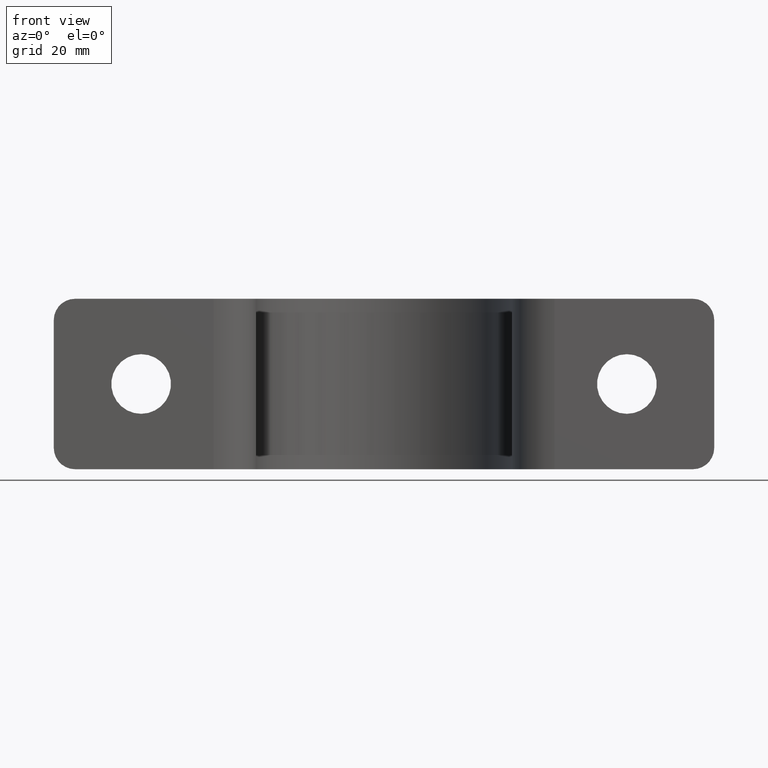
[diagram: clean part render]
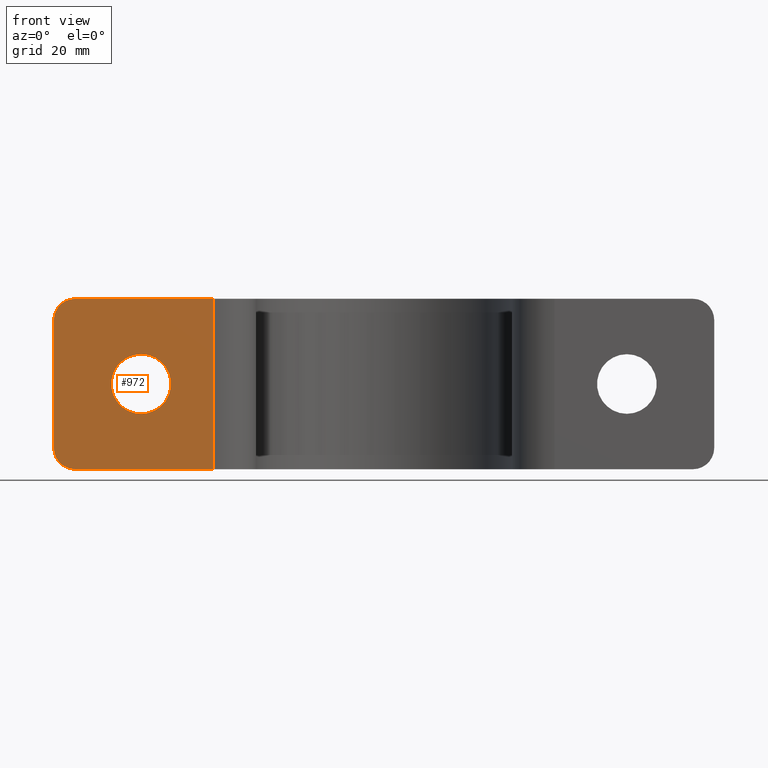
[diagram: same view with one face highlighted and labeled with its STEP entity id]
A machine part, front view. The second image highlights one B-rep face of the part: STEP entity #972.
In plain terms, the highlighted planar face has unit normal (-0, 1, 0).
Its self-contained STEP definition (entity closure, byte-faithful):
#9 = CARTESIAN_POINT ( 'NONE',  ( -72.49999999999998579, 2.999999999999975131, -20.00000000000000000 ) ) ;
#10 = AXIS2_PLACEMENT_3D ( 'NONE', #1037, #374, #870 ) ;
#17 = CARTESIAN_POINT ( 'NONE',  ( -57.00000000000000000, 2.999999999999973355, 0.000000000000000000 ) ) ;
#52 = EDGE_LOOP ( 'NONE', ( #343, #655 ) ) ;
#53 = CIRCLE ( 'NONE', #947, 5.000000000000004441 ) ;
#57 = EDGE_CURVE ( 'NONE', #1081, #366, #897, .T. ) ;
#69 = CARTESIAN_POINT ( 'NONE',  ( -40.00000000000000000, 2.999999999999980016, -20.00000000000000000 ) ) ;
#74 = DIRECTION ( 'NONE',  ( -1.000000000000000000, -1.734723475976805615E-16, 0.000000000000000000 ) ) ;
#81 = EDGE_CURVE ( 'NONE', #731, #133, #1087, .T. ) ;
#87 = CARTESIAN_POINT ( 'NONE',  ( -72.50000000000000000, 2.999999999999975131, 20.00000000000000000 ) ) ;
#100 = ORIENTED_EDGE ( 'NONE', *, *, #726, .T. ) ;
#102 = PLANE ( 'NONE',  #208 ) ;
#126 = ORIENTED_EDGE ( 'NONE', *, *, #512, .F. ) ;
#133 = VERTEX_POINT ( 'NONE', #69 ) ;
#143 = DIRECTION ( 'NONE',  ( -0.000000000000000000, 1.000000000000000000, -0.000000000000000000 ) ) ;
#147 = DIRECTION ( 'NONE',  ( -1.460819769243627131E-16, 1.000000000000000000, 0.000000000000000000 ) ) ;
#151 = CARTESIAN_POINT ( 'NONE',  ( -72.50000000000000000, 2.999999999999975131, 15.00000000000000000 ) ) ;
#176 = CARTESIAN_POINT ( 'NONE',  ( -77.50000000000000000, 2.999999999999974687, 15.00000000000000000 ) ) ;
#184 = FACE_OUTER_BOUND ( 'NONE', #1021, .T. ) ;
#208 = AXIS2_PLACEMENT_3D ( 'NONE', #443, #147, #565 ) ;
#220 = ORIENTED_EDGE ( 'NONE', *, *, #81, .F. ) ;
#228 = DIRECTION ( 'NONE',  ( 0.000000000000000000, 0.000000000000000000, 1.000000000000000000 ) ) ;
#261 = CARTESIAN_POINT ( 'NONE',  ( -77.50000000000000000, 2.999999999999974687, 20.00000000000000000 ) ) ;
#262 = CARTESIAN_POINT ( 'NONE',  ( -77.50000000000000000, 2.999999999999974687, 20.00000000000000000 ) ) ;
#269 = FACE_BOUND ( 'NONE', #52, .T. ) ;
#289 = CARTESIAN_POINT ( 'NONE',  ( -77.50000000000000000, 2.999999999999974687, -15.00000000000000355 ) ) ;
#318 = VECTOR ( 'NONE', #965, 1000.000000000000000 ) ;
#326 = CARTESIAN_POINT ( 'NONE',  ( -57.00000000000000000, 2.999999999999973355, 6.999999999999999112 ) ) ;
#343 = ORIENTED_EDGE ( 'NONE', *, *, #57, .T. ) ;
#353 = DIRECTION ( 'NONE',  ( -0.000000000000000000, 1.000000000000000000, -0.000000000000000000 ) ) ;
#366 = VERTEX_POINT ( 'NONE', #549 ) ;
#374 = DIRECTION ( 'NONE',  ( 1.460819769243627131E-16, -1.000000000000000000, -0.000000000000000000 ) ) ;
#443 = CARTESIAN_POINT ( 'NONE',  ( -77.50000000000000000, 2.999999999999974687, 20.00000000000000000 ) ) ;
#462 = CARTESIAN_POINT ( 'NONE',  ( -40.00000000000000000, 2.999999999999980016, 20.00000000000000000 ) ) ;
#465 = EDGE_CURVE ( 'NONE', #528, #133, #521, .T. ) ;
#477 = CIRCLE ( 'NONE', #718, 6.999999999999999112 ) ;
#482 = DIRECTION ( 'NONE',  ( -0.000000000000000000, -0.000000000000000000, -1.000000000000000000 ) ) ;
#488 = CIRCLE ( 'NONE', #10, 5.000000000000004441 ) ;
#512 = EDGE_CURVE ( 'NONE', #519, #731, #703, .T. ) ;
#519 = VERTEX_POINT ( 'NONE', #87 ) ;
#521 = LINE ( 'NONE', #999, #809 ) ;
#528 = VERTEX_POINT ( 'NONE', #9 ) ;
#549 = CARTESIAN_POINT ( 'NONE',  ( -57.00000000000000000, 2.999999999999973355, -6.999999999999999112 ) ) ;
#554 = VECTOR ( 'NONE', #482, 1000.000000000000000 ) ;
#565 = DIRECTION ( 'NONE',  ( -1.000000000000000000, -1.460819769243627131E-16, 0.000000000000000000 ) ) ;
#567 = AXIS2_PLACEMENT_3D ( 'NONE', #924, #143, #228 ) ;
#568 = VECTOR ( 'NONE', #712, 1000.000000000000000 ) ;
#593 = LINE ( 'NONE', #262, #568 ) ;
#620 = VERTEX_POINT ( 'NONE', #289 ) ;
#655 = ORIENTED_EDGE ( 'NONE', *, *, #956, .T. ) ;
#703 = LINE ( 'NONE', #261, #318 ) ;
#704 = DIRECTION ( 'NONE',  ( 0.000000000000000000, 0.000000000000000000, 1.000000000000000000 ) ) ;
#712 = DIRECTION ( 'NONE',  ( -0.000000000000000000, -0.000000000000000000, -1.000000000000000000 ) ) ;
#718 = AXIS2_PLACEMENT_3D ( 'NONE', #17, #353, #704 ) ;
#726 = EDGE_CURVE ( 'NONE', #620, #528, #488, .T. ) ;
#731 = VERTEX_POINT ( 'NONE', #462 ) ;
#746 = ORIENTED_EDGE ( 'NONE', *, *, #1013, .T. ) ;
#790 = DIRECTION ( 'NONE',  ( 1.000000000000000000, 1.460819769243627131E-16, 0.000000000000000000 ) ) ;
#809 = VECTOR ( 'NONE', #790, 1000.000000000000000 ) ;
#824 = ORIENTED_EDGE ( 'NONE', *, *, #465, .T. ) ;
#870 = DIRECTION ( 'NONE',  ( -1.000000000000000000, -1.734723475976805615E-16, -1.040834085586083271E-15 ) ) ;
#897 = CIRCLE ( 'NONE', #567, 6.999999999999999112 ) ;
#903 = VERTEX_POINT ( 'NONE', #176 ) ;
#924 = CARTESIAN_POINT ( 'NONE',  ( -57.00000000000000000, 2.999999999999973355, 0.000000000000000000 ) ) ;
#946 = EDGE_CURVE ( 'NONE', #903, #620, #593, .T. ) ;
#947 = AXIS2_PLACEMENT_3D ( 'NONE', #151, #1104, #74 ) ;
#956 = EDGE_CURVE ( 'NONE', #366, #1081, #477, .T. ) ;
#965 = DIRECTION ( 'NONE',  ( 1.000000000000000000, 1.460819769243627131E-16, 0.000000000000000000 ) ) ;
#972 = ADVANCED_FACE ( 'NONE', ( #269, #184 ), #102, .F. ) ;
#999 = CARTESIAN_POINT ( 'NONE',  ( -77.50000000000000000, 2.999999999999974687, -20.00000000000000000 ) ) ;
#1013 = EDGE_CURVE ( 'NONE', #519, #903, #53, .T. ) ;
#1018 = CARTESIAN_POINT ( 'NONE',  ( -40.00000000000000000, 2.999999999999980016, 20.00000000000000000 ) ) ;
#1021 = EDGE_LOOP ( 'NONE', ( #1064, #100, #824, #220, #126, #746 ) ) ;
#1037 = CARTESIAN_POINT ( 'NONE',  ( -72.49999999999998579, 2.999999999999975131, -15.00000000000000000 ) ) ;
#1064 = ORIENTED_EDGE ( 'NONE', *, *, #946, .T. ) ;
#1081 = VERTEX_POINT ( 'NONE', #326 ) ;
#1087 = LINE ( 'NONE', #1018, #554 ) ;
#1104 = DIRECTION ( 'NONE',  ( 1.460819769243627131E-16, -1.000000000000000000, -0.000000000000000000 ) ) ;